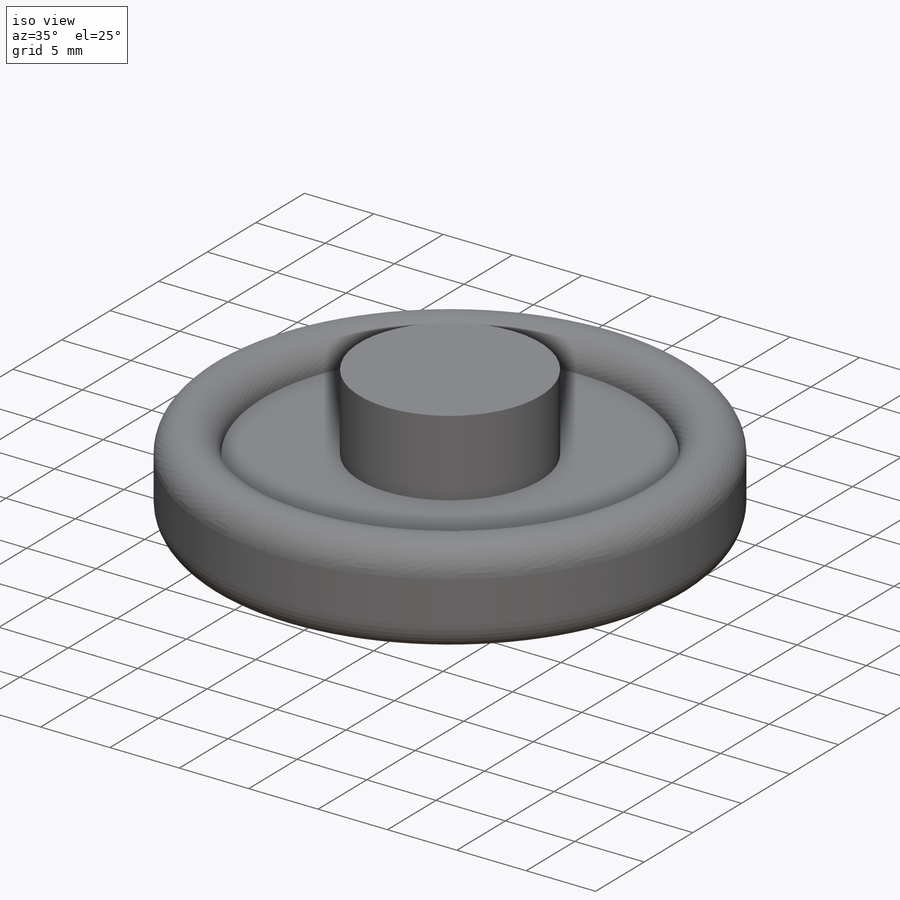
[diagram: iso view]
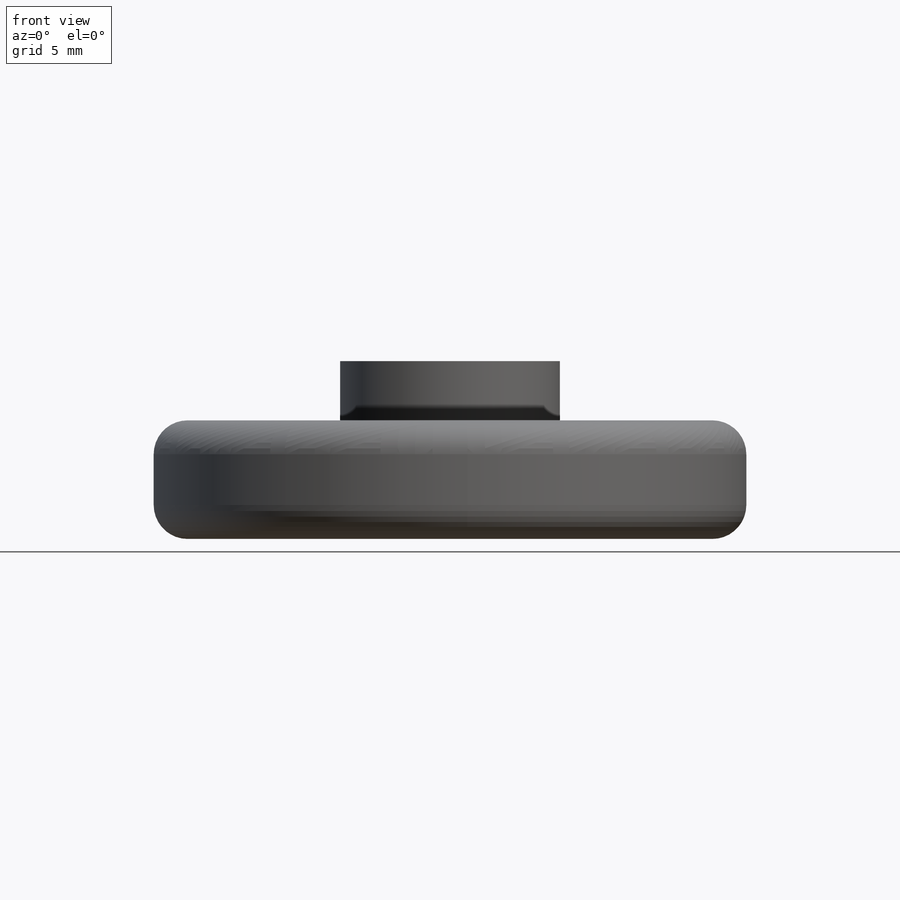
[diagram: front view]
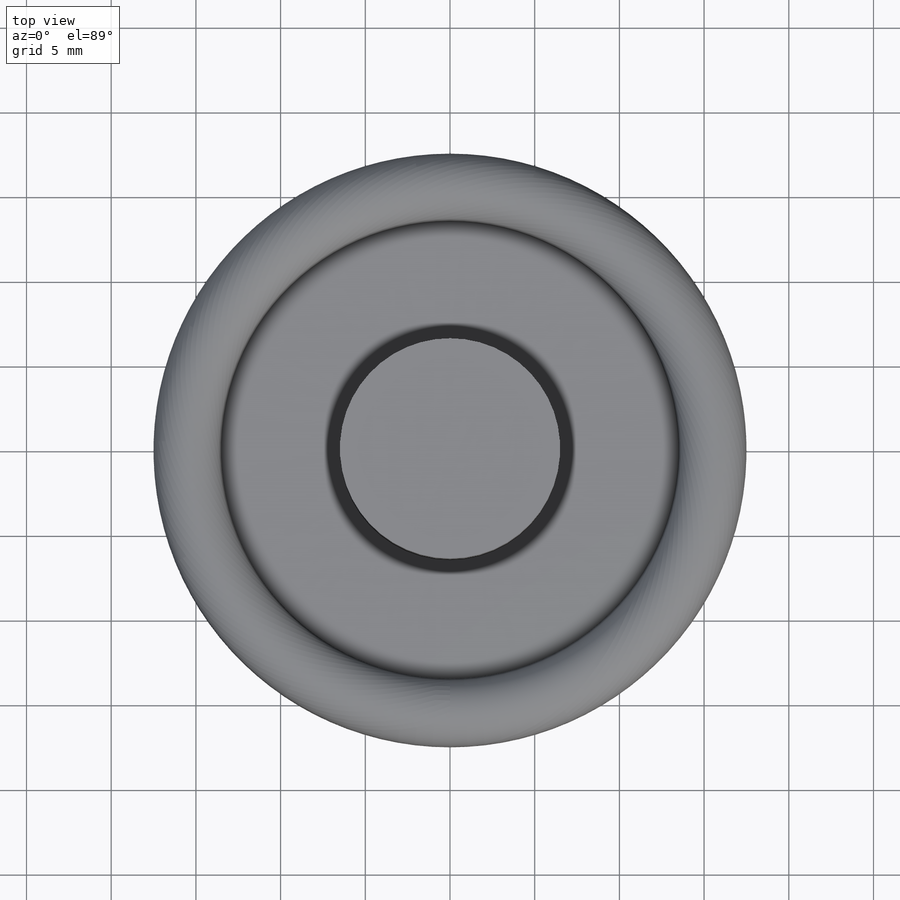
[diagram: top view]
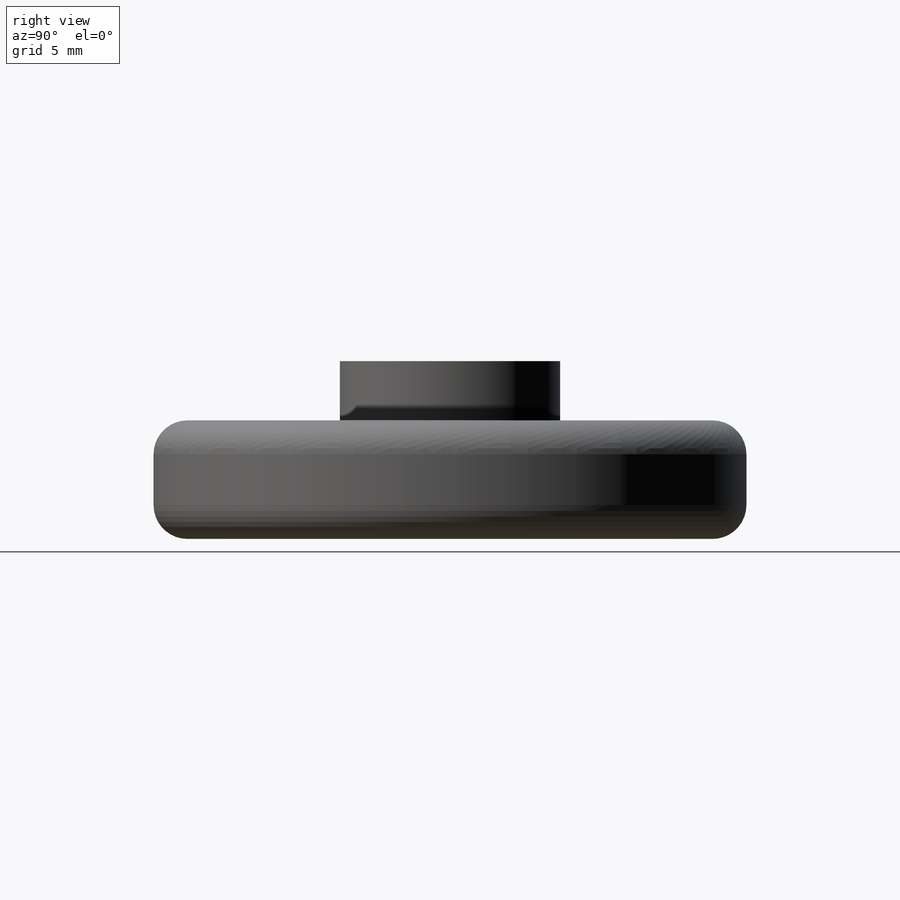
[diagram: right view]
SOLIDWORKS PART (.sldprt)
format: sldprt  version: not decoded by parser v0  size: 468,480 bytes
history: native  units: mm
features: sketch x5, plane x4, cut_extrude x3, material x1, revolve x1, extrude x1 (+9 scaffold rows collapsed)
feature tree (24):
  scaffold x9  (default folders/planes/origin — collapsed)
  material  "Резина"
  plane  "Спереди"
  plane  "Сверху"
  plane  "Справа"
  sketch  "Эскиз1"  dims[D2=2.0mm D1=15.5mm D3=3.0mm D4=3.0mm]
  revolve  "Повернуть1"  Angle=360deg
  sketch  "Эскиз4"  dims[D1=13.0mm]
  extrude  "Бобышка-Вытянуть1"  Depth=7mm
  plane  "Плоскость1"  Offset=6.25mm
  sketch  "Эскиз5"  dims[D1=8.0mm]
  cut_extrude  "Вырез-Вытянуть1"  Depth=1.5mm
  cut_extrude  "Вырез-Вытянуть2"  [1 undecoded]
  sketch  "Эскиз5<2>"  dims[D1=1.5mm D19=3.5mm]
  sketch  "Эскиз6"  dims[D1=6.0mm]
  cut_extrude  "Вырез-Вытянуть3"  [1 undecoded]
decode coverage: 8 of 10 modeling features carry decoded parameters
note: 2 parameter values undecoded
note: suppression state not decoded; provenance and decode notes live in map.json
